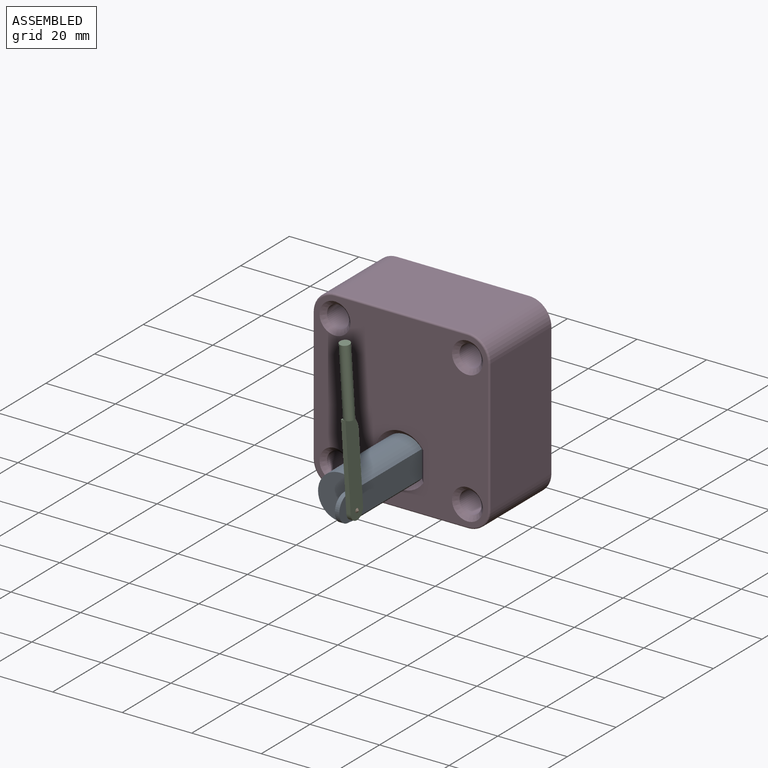
[diagram: assembled view]
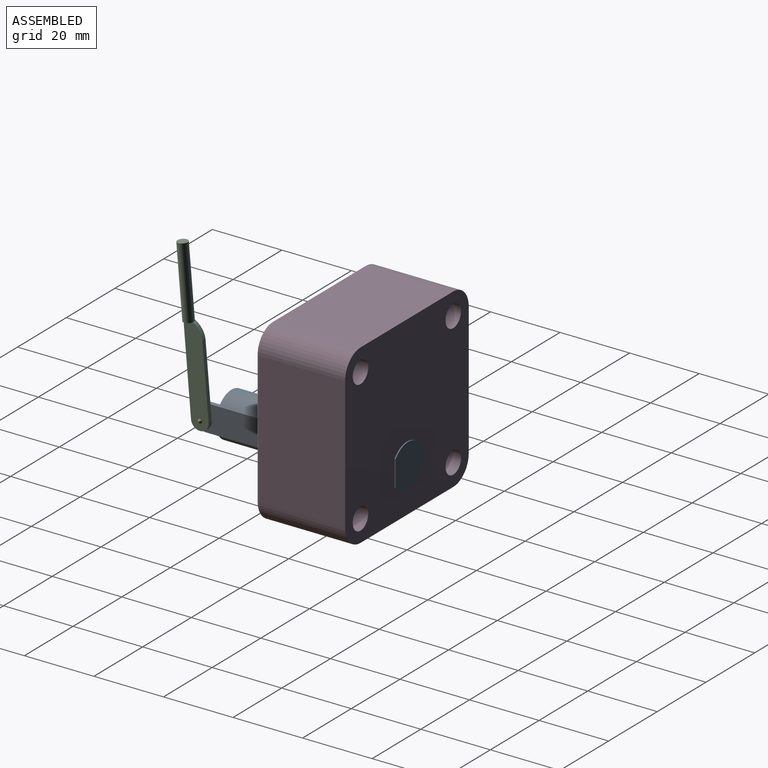
[diagram: assembled view, second angle]
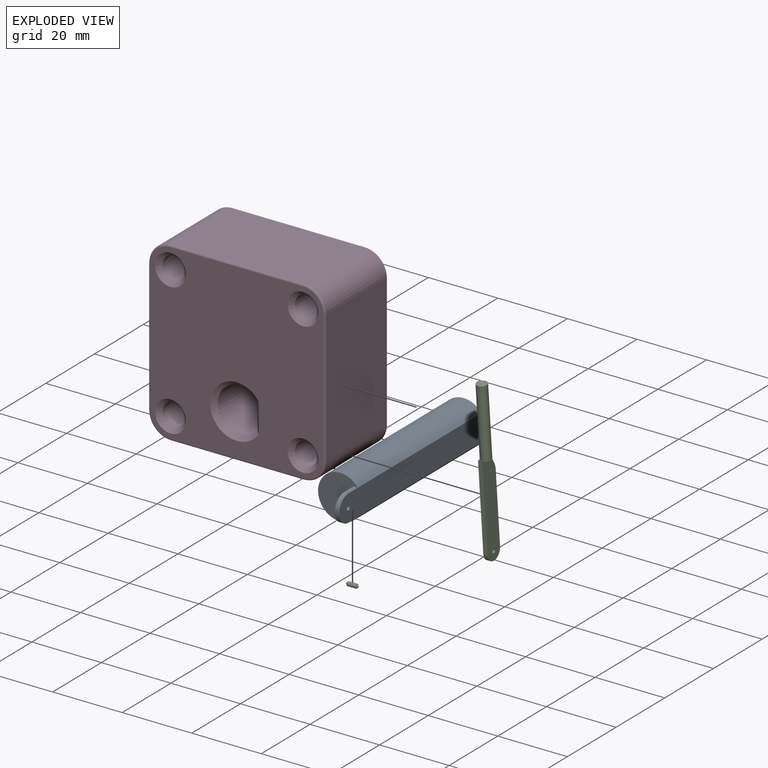
[diagram: exploded view]
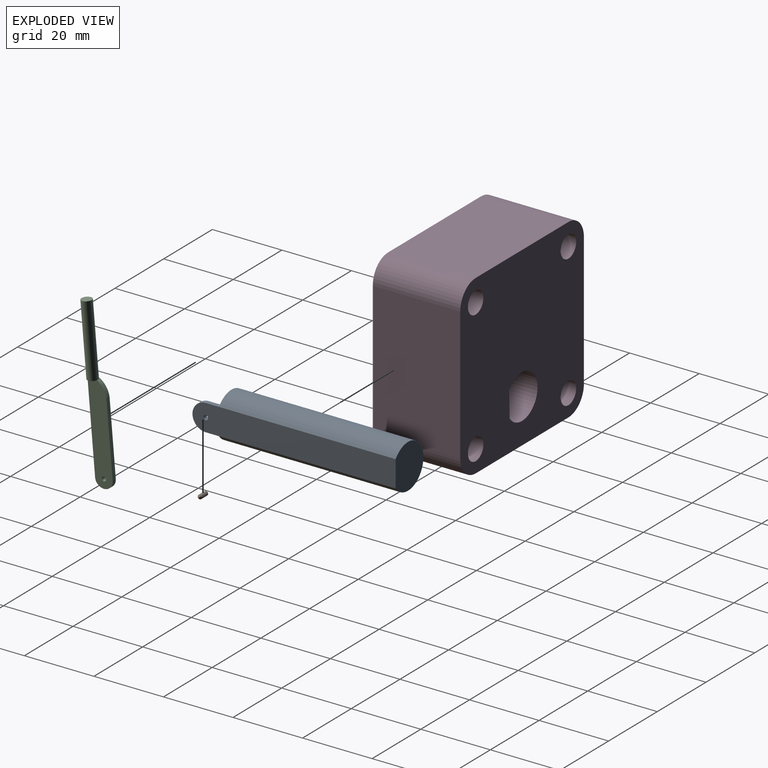
[diagram: exploded view, second angle]
ASSEMBLY  parts=4 mates=3
PART A: 9 faces, bbox 11.4x58.4x12.7 mm
  f0: cylinder r=6.35mm len=50.8mm, axis (0,1,0), area 1611.7mm2, adj f1,f2,f3
  f1: plane 58.42x7.62mm, normal (1,0,0), area 437.7mm2, adj f0,f3,f4,f5,f6,f7
  f2: plane 12.7x11.43mm, normal (0,-1,0), area 110.4mm2, adj f0,f4,f5,f8
  f3: plane 12.7x11.43mm, normal (0,1,0), area 120.1mm2, adj f0,f1
  f4: plane 3.81x1.27mm, normal (0,0,-1), area 4.8mm2, adj f1,f2,f7,f8
  f5: plane 3.81x1.27mm, normal (0,0,1), area 4.8mm2, adj f1,f2,f7,f8
  f6: cylinder r=0.64mm len=1.27mm, axis (1,0,0), area 5.1mm2, adj f1,f8
  f7: cylinder r=3.81mm len=7.62mm, axis (1,0,0), area 15.2mm2, adj f1,f4,f5,f8
  f8: plane 7.62x7.62mm, normal (-1,0,0), area 50.6mm2, adj f2,f4,f5,f6,f7
PART B: 5 faces, bbox 3.6x1.2x1.2 mm
  f0: cylinder r=0.61mm len=2.54mm, axis (1,0,0), area 9.8mm2, adj f3,f4
  f1: plane 0.21x0.21mm, normal (-1,0,0), area 0mm2, adj f3
  f2: plane 0.21x0.21mm, normal (1,0,0), area 0mm2, adj f4
  f3: cone r=0.61mm half-angle=45deg, axis (1,0,0), area 1.6mm2, adj f0,f1
  f4: cone r=0.1mm half-angle=45deg, axis (-1,0,0), area 1.6mm2, adj f0,f2
PART C: 13 faces, bbox 3x5.1x48.3 mm
  f0: plane 2.97x2.53mm, normal (0,0,-1), area 3.8mm2, adj f3,f8,f12
  f1: plane 1.53x0.21mm, normal (0,0,-1), area 0.2mm2, adj f3,f11
  f2: plane 2.97x2.97mm, normal (0,0,1), area 6.9mm2, adj f3
  f3: cylinder r=1.48mm len=20.32mm, axis (0,0,-1), area 189.4mm2, adj f0,f1,f2,f4,f10
  f4: plane 0.29x0.23mm, normal (0,0,1), area 0mm2, adj f3,f8,f11
  f5: plane 25.4x1.27mm, normal (0,-1,0), area 32.3mm2, adj f6,f10,f11,f12
  f6: cylinder r=2.54mm len=5.08mm, axis (1,0,0), area 10.1mm2, adj f5,f7,f11,f12
  f7: plane 21.14x1.27mm, normal (0,1,0), area 26.9mm2, adj f6,f8,f11,f12
  f8: cylinder r=5.88mm len=4.26mm, axis (1,0,0), area 6.5mm2, adj f0,f4,f7,f11,f12
  f9: cylinder r=0.6mm len=1.27mm, axis (1,0,0), area 4.8mm2, adj f11,f12
  f10: plane 1.27x0.72mm, normal (0,0,1), area 0.3mm2, adj f3,f5,f11
  f11: plane 27.94x5.08mm, normal (-1,0,0), area 134.5mm2, adj f1,f4,f5,f6,f7,f8,f9,f10
  f12: plane 27.94x5.08mm, normal (1,0,0), area 134.5mm2, adj f0,f5,f6,f7,f8,f9
PART D: 30 faces, bbox 51.8x25.4x51.8 mm
  f0: cylinder r=6.35mm len=24.13mm, axis (0,1,0), area 765.5mm2, adj f13,f15,f28
  f1: cylinder r=6.35mm len=24.89mm, axis (0,1,0), area 248.3mm2, adj f2,f8,f15,f26
  f2: plane 38.1x24.89mm, normal (0,0,1), area 948.4mm2, adj f1,f3,f15,f24
  f3: cylinder r=6.35mm len=24.89mm, axis (0,1,0), area 248.3mm2, adj f2,f4,f15,f22
  f4: plane 38.1x24.89mm, normal (-1,0,0), area 948.4mm2, adj f3,f5,f15,f20
  f5: cylinder r=6.35mm len=24.89mm, axis (0,1,0), area 248.3mm2, adj f4,f6,f15,f21
  f6: plane 38.1x24.89mm, normal (0,0,-1), area 948.4mm2, adj f5,f7,f15,f23
  f7: cylinder r=6.35mm len=24.89mm, axis (0,1,0), area 248.3mm2, adj f6,f8,f15,f25
  f8: plane 38.1x24.89mm, normal (1,0,0), area 948.4mm2, adj f1,f7,f15,f27
  f9: cylinder r=3.17mm len=24.13mm, axis (0,1,0), area 481.4mm2, adj f15,f18
  f10: cylinder r=3.17mm len=24.13mm, axis (0,1,0), area 481.4mm2, adj f15,f16
  f11: cylinder r=3.17mm len=24.13mm, axis (0,1,0), area 481.4mm2, adj f15,f19
  f12: cylinder r=3.17mm len=24.13mm, axis (0,1,0), area 481.4mm2, adj f15,f17
  f13: plane 24.13x7.62mm, normal (-1,0,0), area 183.9mm2, adj f0,f15,f29
  f14: plane 49.78x49.78mm, normal (0,-1,0), area 2025.7mm2, adj f16,f17,f18,f19,f20,f21,f22,f23
  f15: plane 50.8x50.8mm, normal (0,1,0), area 2299.3mm2, adj f0,f1,f2,f3,f4,f5,f6,f7
  f16: cone r=3.17mm half-angle=45deg, axis (0,-1,0), area 43mm2, adj f10,f14
  f17: cone r=3.17mm half-angle=45deg, axis (0,-1,0), area 43mm2, adj f12,f14
  f18: cone r=3.17mm half-angle=45deg, axis (0,-1,0), area 43mm2, adj f9,f14
  f19: cone r=3.17mm half-angle=45deg, axis (0,-1,0), area 43mm2, adj f11,f14
  f20: cylinder r=0.51mm len=38.1mm, axis (0,0,1), area 30.4mm2, adj f4,f14,f21,f22
  f21: torus R=5.84mm, axis (0,-1,0), area 7.7mm2, adj f5,f14,f20,f23
  f22: torus R=5.84mm, axis (0,-1,0), area 7.7mm2, adj f3,f14,f20,f24
  f23: cylinder r=0.51mm len=38.1mm, axis (-1,0,0), area 30.4mm2, adj f6,f14,f21,f25
  f24: cylinder r=0.51mm len=38.1mm, axis (1,0,0), area 30.4mm2, adj f2,f14,f22,f26
  f25: torus R=5.84mm, axis (0,-1,0), area 7.7mm2, adj f7,f14,f23,f27
  f26: torus R=5.84mm, axis (0,-1,0), area 7.7mm2, adj f1,f14,f24,f27
  f27: cylinder r=0.51mm len=38.1mm, axis (0,0,-1), area 30.4mm2, adj f8,f14,f25,f26
  f28: cone r=6.35mm half-angle=45deg, axis (0,-1,0), area 63.5mm2, adj f0,f14,f29
  f29: plane 8.42x1.27mm, normal (-0.71,-0.71,0), area 14.4mm2, adj f13,f14,f28
PLACE A t=(0,25.7,0)mm
PLACE B t=(2.92,25.7,0)mm
PLACE C rot(axis=(1,0,0),4.9deg) t=(7.49,33.97,7.59)mm
PLACE D at identity fixed
MATE slider A.f0 <-> D.f0  axis (0,1,0) through (0,-25.1,0)mm
MATE revolute B.f0 <-> C.f6  axis (1,0,0) through (7.49,-54.31,0)mm
MATE revolute B.f0 <-> A.f6  axis (1,0,0) through (4.45,-54.31,0)mm
